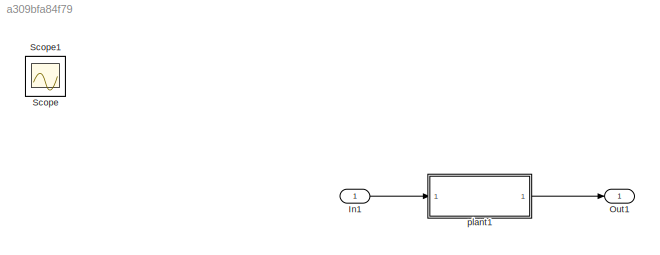
MODEL slx_a309bfa84f79
KIND model
CONFIG AbsTol = auto
CONFIG FixedStep = delta_t
CONFIG MaxStep = auto
CONFIG MinStep = auto
CONFIG PreLoadFcn = model_prediction_init
CONFIG RelTol = 1e-3
CONFIG SampleTimeConstraint = Unconstrained
CONFIG Solver = ode1
CONFIG SolverMode = Auto
CONFIG SolverName = ode1
CONFIG StartTime = 0.0
CONFIG StopTime = inf
BLOCK [Inport] In1
  IconDisplay = Port number
BLOCK [Outport] Out1
  IconDisplay = Port number
BLOCK [Scope] Scope
  Floating = off
  IOType = viewer
  MaxDataPoints = 7500
  NumInputPorts = 2
  Ports = []
  SampleTime = 0
  ShowLegends = off
  TimeRange = 5
  YMax = 175~4
  YMin = 0~0
  ZoomMode = xonly
BLOCK [Scope] Scope1
  Floating = off
  IOType = viewer
  MaxDataPoints = 7500
  NumInputPorts = 1
  Ports = []
  SampleTime = 0
  SaveName = ScopeData1
  ShowLegends = off
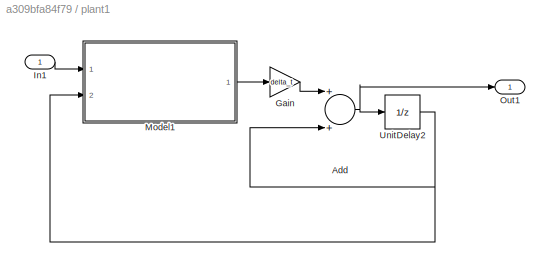
BLOCK [SubSystem] plant1
  Ports = [1, 1]
  RequestExecContextInheritance = off
BLOCK [Sum] plant1/Add
  InputSameDT = off
  OutDataTypeStr = Inherit: Inherit via internal rule
  Ports = [2, 1]
  SaturateOnIntegerOverflow = off
BLOCK [Gain] plant1/Gain
  Gain = delta_t
  OutDataTypeStr = Inherit: Inherit via internal rule
  ParamDataTypeStr = Inherit: Inherit via internal rule
  SaturateOnIntegerOverflow = off
BLOCK [Inport] plant1/In1
  IconDisplay = Port number
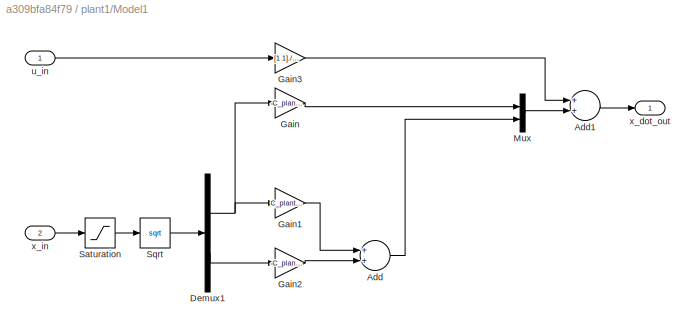
BLOCK [SubSystem] plant1/Model1
  Ports = [2, 1]
  RequestExecContextInheritance = off
BLOCK [Sum] plant1/Model1/Add
  InputSameDT = off
  OutDataTypeStr = Inherit: Inherit via internal rule
  Ports = [2, 1]
  SaturateOnIntegerOverflow = off
BLOCK [Sum] plant1/Model1/Add1
  InputSameDT = off
  OutDataTypeStr = Inherit: Inherit via internal rule
  Ports = [2, 1]
  SaturateOnIntegerOverflow = off
BLOCK [Demux] plant1/Model1/Demux1
  DisplayOption = bar
  Outputs = 2
  Ports = [1, 2]
BLOCK [Gain] plant1/Model1/Gain
  Gain = -C_plant(1)/tank_area(1)
  OutDataTypeStr = Inherit: Inherit via internal rule
  ParamDataTypeStr = Inherit: Inherit via internal rule
  SaturateOnIntegerOverflow = off
BLOCK [Gain] plant1/Model1/Gain1
  Gain = C_plant(1)/tank_area(2)
  OutDataTypeStr = Inherit: Inherit via internal rule
  ParamDataTypeStr = Inherit: Inherit via internal rule
  SaturateOnIntegerOverflow = off
BLOCK [Gain] plant1/Model1/Gain2
  Gain = -C_plant(2)/tank_area(2)
  OutDataTypeStr = Inherit: Inherit via internal rule
  ParamDataTypeStr = Inherit: Inherit via internal rule
  SaturateOnIntegerOverflow = off
BLOCK [Gain] plant1/Model1/Gain3
  Gain = [1 1]./tank_area
  OutDataTypeStr = Inherit: Inherit via internal rule
  ParamDataTypeStr = Inherit: Inherit via internal rule
  SaturateOnIntegerOverflow = off
BLOCK [Mux] plant1/Model1/Mux
  DisplayOption = bar
  Inputs = 2
  Ports = [2, 1]
BLOCK [Saturate] plant1/Model1/Saturation
  InputPortMap = u0
  LowerLimit = 0
  Ports = [1, 1]
  UpperLimit = inf
BLOCK [Sqrt] plant1/Model1/Sqrt
BLOCK [Inport] plant1/Model1/u_in
  IconDisplay = Port number
  PortDimensions = realu_dim
BLOCK [Outport] plant1/Model1/x_dot_out
  IconDisplay = Port number
BLOCK [Inport] plant1/Model1/x_in
  IconDisplay = Port number
  Port = 2
  PortDimensions = x_dim
BLOCK [Outport] plant1/Out1
  IconDisplay = Port number
BLOCK [UnitDelay] plant1/UnitDelay2
  InitialCondition = [0.01;0.01]
  InputProcessing = Elements as channels (sample based)
  SampleTime = -1
LINE In1:1 -> plant1:1
NET plant1/Add:1 -> plant1/Out1:1, plant1/UnitDelay2:1
LINE plant1/Gain:1 -> plant1/Add:1
LINE plant1/In1:1 -> plant1/Model1:1
LINE plant1/Model1/Add1:1 -> plant1/Model1/x_dot_out:1
LINE plant1/Model1/Add:1 -> plant1/Model1/Mux:2
NET plant1/Model1/Demux1:1 -> plant1/Model1/Gain1:1, plant1/Model1/Gain:1
LINE plant1/Model1/Demux1:2 -> plant1/Model1/Gain2:1
LINE plant1/Model1/Gain1:1 -> plant1/Model1/Add:1
LINE plant1/Model1/Gain2:1 -> plant1/Model1/Add:2
LINE plant1/Model1/Gain3:1 -> plant1/Model1/Add1:1
LINE plant1/Model1/Gain:1 -> plant1/Model1/Mux:1
LINE plant1/Model1/Mux:1 -> plant1/Model1/Add1:2
LINE plant1/Model1/Saturation:1 -> plant1/Model1/Sqrt:1
LINE plant1/Model1/Sqrt:1 -> plant1/Model1/Demux1:1
LINE plant1/Model1/u_in:1 -> plant1/Model1/Gain3:1
LINE plant1/Model1/x_in:1 -> plant1/Model1/Saturation:1
LINE plant1/Model1:1 -> plant1/Gain:1
NET plant1/UnitDelay2:1 -> plant1/Add:2, plant1/Model1:2
LINE plant1:1 -> Out1:1
note: NET lines group one-source signal fan-out (src -> all destinations, sorted); 1:1 wires keep LINE
